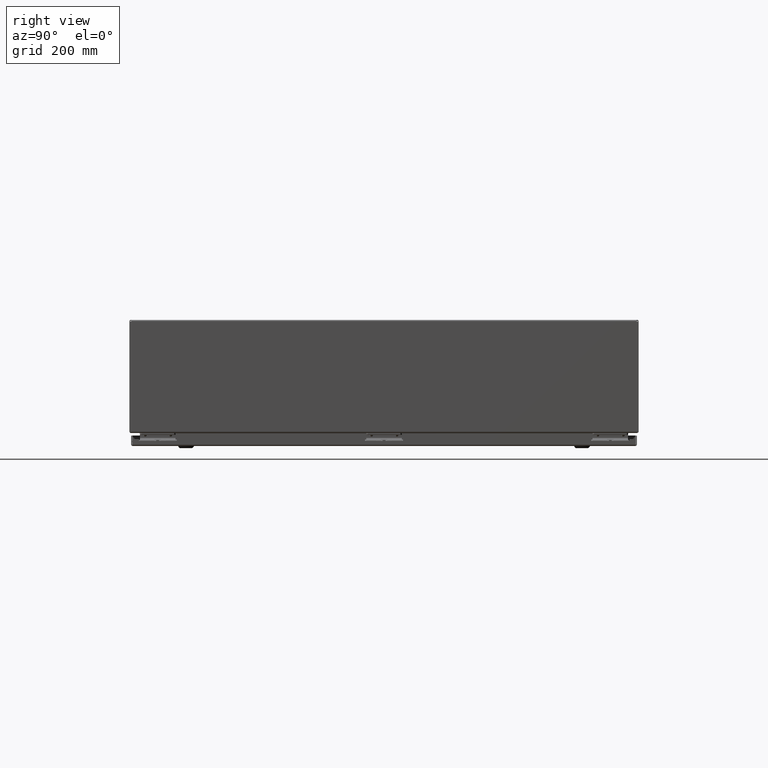
[diagram: clean part render]
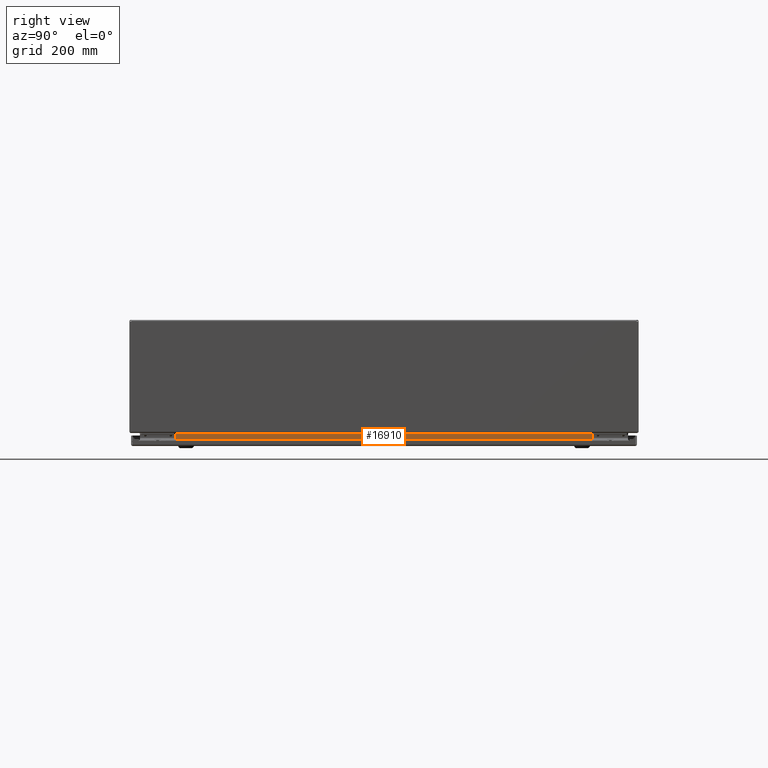
[diagram: same view with one face highlighted and labeled with its STEP entity id]
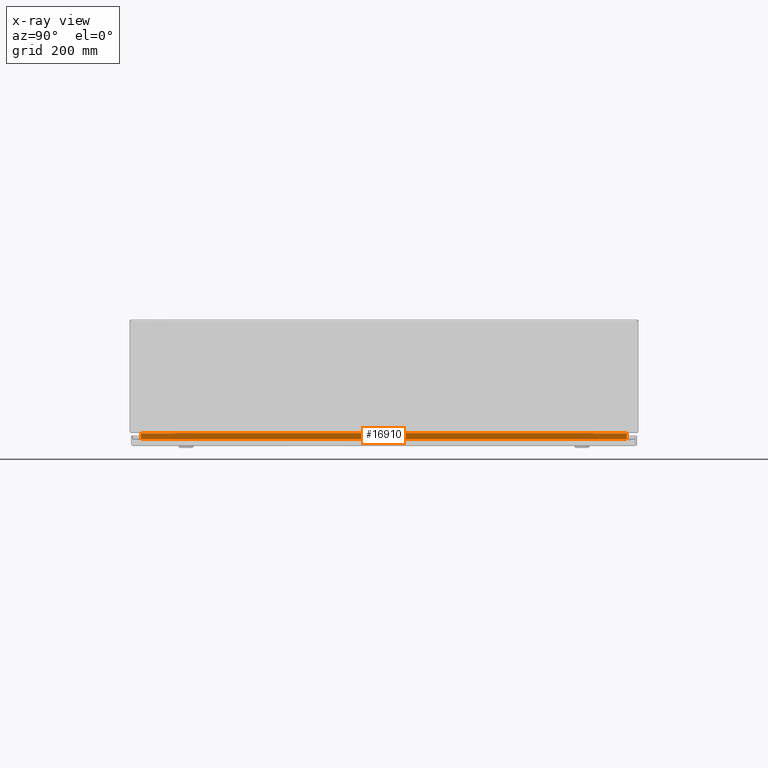
[diagram: x-ray of the same camera — body ghosted, the highlighted face saturated]
A machine part, right view. The second image highlights one B-rep face of the part: STEP entity #16910.
The next image is the same camera in x-ray: the body ghosted, the highlighted face saturated — about 0% of this face is hidden behind the body in this view.
In plain terms, the highlighted planar face has unit normal (1, 0, 0).
Its self-contained STEP definition (entity closure, byte-faithful):
#16263=CARTESIAN_POINT('',(0.738499999999945,35.176451456543596,8.455404022560272));
#16264=VERTEX_POINT('',#16263);
#16313=CARTESIAN_POINT('',(0.738499999999968,0.823548543456033,8.455404022560288));
#16314=VERTEX_POINT('',#16313);
#16392=CARTESIAN_POINT('',(0.738499999999968,0.823548543456031,8.455404022560288));
#16393=DIRECTION('',(0.0,1.0,0.0));
#16394=VECTOR('',#16393,34.352902913087561);
#16395=LINE('',#16392,#16394);
#16396=EDGE_CURVE('',#16314,#16264,#16395,.T.);
#16869=CARTESIAN_POINT('',(0.738499999999987,0.823548543456054,8.031250000000055));
#16870=VERTEX_POINT('',#16869);
#16871=CARTESIAN_POINT('',(0.738499999999987,0.823548543456053,8.031250000000055));
#16872=DIRECTION('',(0.0,0.0,1.0));
#16873=VECTOR('',#16872,0.424154022560234);
#16874=LINE('',#16871,#16873);
#16875=EDGE_CURVE('',#16870,#16314,#16874,.T.);
#16887=CARTESIAN_POINT('',(0.738499999999967,17.999999999999819,8.220787404255971));
#16888=DIRECTION('',(-1.0,0.0,0.0));
#16889=DIRECTION('',(0.0,0.0,1.0));
#16890=AXIS2_PLACEMENT_3D('',#16887,#16888,#16889);
#16891=PLANE('',#16890);
#16892=ORIENTED_EDGE('',*,*,#16396,.T.);
#16893=CARTESIAN_POINT('',(0.738499999999965,35.176451456543575,8.031250000000039));
#16894=VERTEX_POINT('',#16893);
#16895=CARTESIAN_POINT('',(0.738499999999965,35.176451456543575,8.031250000000039));
#16896=DIRECTION('',(0.0,0.0,1.0));
#16897=VECTOR('',#16896,0.424154022560232);
#16898=LINE('',#16895,#16897);
#16899=EDGE_CURVE('',#16894,#16264,#16898,.T.);
#16900=ORIENTED_EDGE('',*,*,#16899,.F.);
#16901=CARTESIAN_POINT('',(0.738499999999965,35.176451456543575,8.031250000000041));
#16902=DIRECTION('',(0.0,-1.0,0.0));
#16903=VECTOR('',#16902,34.352902913087519);
#16904=LINE('',#16901,#16903);
#16905=EDGE_CURVE('',#16894,#16870,#16904,.T.);
#16906=ORIENTED_EDGE('',*,*,#16905,.T.);
#16907=ORIENTED_EDGE('',*,*,#16875,.T.);
#16908=EDGE_LOOP('',(#16892,#16900,#16906,#16907));
#16909=FACE_OUTER_BOUND('',#16908,.T.);
#16910=ADVANCED_FACE('',(#16909),#16891,.T.);